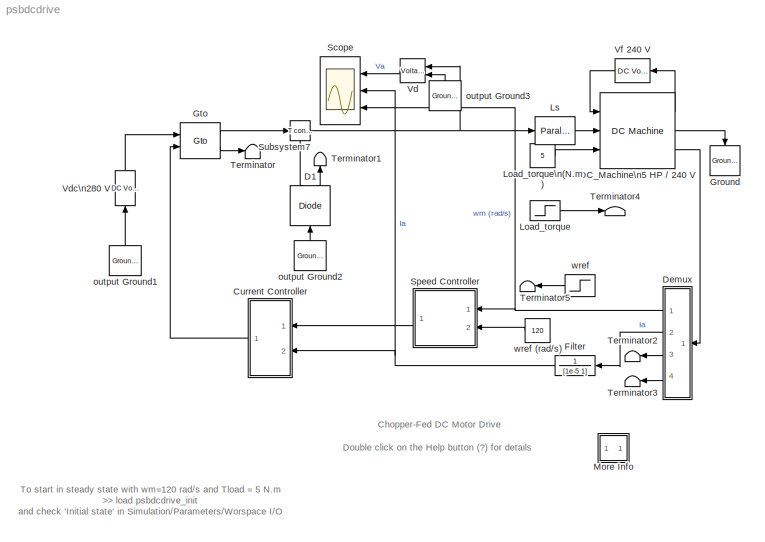
MODEL psbdcdrive
KIND model
CONFIG InitFcn = powericon('psbinitsys',bdroot);
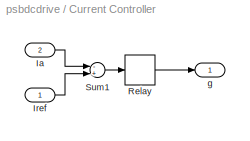
BLOCK [SubSystem] Current Controller
  MaskDescription = Hysteresis Current Controller
  MaskDisplay = plot(0,0,100,100,[45,45],[35,65],[55,55],[35,65],[45,65],[65,65],[35,55],[35,35])
  MaskEnableString = on
  MaskIconFrame = on
  MaskIconOpaque = off
  MaskIconRotate = none
  MaskIconUnits = autoscale
  MaskPromptString = Hysteresis band (A)
  MaskStyleString = edit
  MaskToolTipString = on
  MaskTunableValueString = on
  MaskValueString = 2
  MaskVariables = h=@1;
  MaskVisibilityString = on
  MinAlgLoopOccurrences = off
  Ports = [2, 1]
  RTWSystemCode = Auto
  TreatAsAtomicUnit = off
BLOCK [Inport] Current Controller/Ia
  IconDisplay = Port number
  LatchInput = off
  Port = 2
BLOCK [Inport] Current Controller/Iref
  IconDisplay = Port number
  LatchInput = off
  Port = 1
BLOCK [Relay] Current Controller/Relay
  OffSwitchValue = -h/2
  OnSwitchValue = h/2
BLOCK [Sum] Current Controller/Sum1
  Inputs = -+
  Ports = [2, 1]
BLOCK [Outport] Current Controller/g
  BusOutputAsStruct = off
  IconDisplay = Port number
  InitialOutput = 0
BLOCK [Reference] D1  REF=powerlib2/Power\nElectronics/Diode
  Cs = 0.1e-6
  IC = 0
  Lon = 5e-6
  PSBOutputType = 10
  Ports = [1, 2]
  Ron = 0.05
  Rs = Inf
  SourceBlock = powerlib2/Power\nElectronics/Diode
  SourceType = Diode
  Tag = PoWeRsYsTeMbLoCk
  Vf = 0.7
BLOCK [Reference] DC_Machine\n5 HP // 240 V  REF=powerlib2/Machines/DC Machine
  Bm = 0.02
  J = 0.05
  Laf = 1.23
  PSBOutputType = 110
  Ports = [3, 3]
  RLa = [0.5  0.01]
  RLf = [240  0]
  SourceBlock = powerlib2/Machines/DC Machine
  SourceType = DC machine
  Tf = 0
  w0 = 1e-1
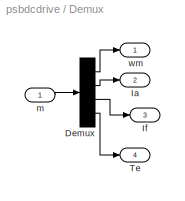
BLOCK [SubSystem] Demux
  MinAlgLoopOccurrences = off
  Ports = [1, 4]
  RTWSystemCode = Auto
  TreatAsAtomicUnit = off
BLOCK [Demux] Demux/Demux
  Ports = [1, 4]
BLOCK [Outport] Demux/Ia
  BusOutputAsStruct = off
  IconDisplay = Port number
  Port = 2
BLOCK [Outport] Demux/If
  BusOutputAsStruct = off
  IconDisplay = Port number
  Port = 3
BLOCK [Outport] Demux/Te
  BusOutputAsStruct = off
  IconDisplay = Port number
  Port = 4
BLOCK [Inport] Demux/m
  IconDisplay = Port number
  LatchInput = off
  Port = 1
BLOCK [Outport] Demux/wm
  BusOutputAsStruct = off
  IconDisplay = Port number
BLOCK [TransferFcn] Filter
  Denominator = [1e-5 1]
  MaskDisplay = disp('Filter')
  MaskIconFrame = on
  MaskIconOpaque = on
  MaskIconRotate = none
  MaskIconUnits = autoscale
  Numerator = 1
BLOCK [Reference] Ground  REF=powerlib2/Connectors/Ground (input)
  Ports = [1]
  SourceBlock = powerlib2/Connectors/Ground (input)
  SourceType = Ground
  Tag = PoWeRsYsTeMbLoCk
BLOCK [Reference] Gto  REF=powerlib2/Power\nElectronics/Gto
  Cs = 0.1e-6
  IC = 0
  Lon = 1e-6
  PSBOutputType = 10
  Ports = [2, 2]
  Ron = 0.05
  Rs = 100
  SourceBlock = powerlib2/Power\nElectronics/Gto
  SourceType = Gto
  Tag = PoWeRsYsTeMbLoCk
  Tf = 1e-6
  Tt = 1e-6
  Vf = 1
BLOCK [Step] Load_torque 
  After = 25
  Before = 5
  SampleTime = 0
  Time = 1.2
BLOCK [Constant] Load_torque\n(N.m)
  Value = 5
BLOCK [Reference] Ls  REF=powerlib2/Elements/Parallel RLC Branch
  PSBOutputType = 1
  Ports = [1, 1]
  SourceBlock = powerlib2/Elements/Parallel RLC Branch
  SourceType = Parallel RLC Branch
  Tag = PoWeRsYsTeMbLoCk
  a = inf
  b = 10e-03
  c = 0
  mesure = None
BLOCK [SubSystem] More Info
  MaskDisplay = disp('?')
  MaskIconFrame = on
  MaskIconOpaque = on
  MaskIconRotate = none
  MaskIconUnits = autoscale
  MinAlgLoopOccurrences = off
  Ports = []
  RTWSystemCode = Auto
  TreatAsAtomicUnit = off
BLOCK [Scope] Scope
  DataFormat = StructureWithTime
  Decimation = 20
  LimitDataPoints = off
  NumInputPorts = 3
  Ports = [3]
  SaveName = var
  SaveToWorkspace = on
  TickLabels = on
  YMax = 300~40~80
  YMin = -300~0~0
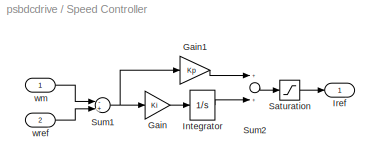
BLOCK [SubSystem] Speed Controller
  MaskCallbackString = ||
  MaskDescription = Proportional-Integral Speed Controller
  MaskDisplay = plot(0,0,100,100,[35,35,65],[70,30,30],[35,65],[45,60])
  MaskEnableString = on,on,on
  MaskIconFrame = on
  MaskIconOpaque = off
  MaskIconRotate = none
  MaskIconUnits = autoscale
  MaskPromptString = Proportional gain (Kp)|Integral gain (Ki)|Current limit (A)
  MaskStyleString = edit,edit,edit
  MaskTabNameString = ,,
  MaskToolTipString = on,on,on
  MaskTunableValueString = on,on,on
  MaskType = PI controller
  MaskValueString = 1.6|16|30
  MaskVarAliasString = ,,
  MaskVariables = Kp=@1;Ki=@2;Ilim=@3;
  MaskVisibilityString = on,on,on
  MinAlgLoopOccurrences = off
  Ports = [2, 1]
  RTWSystemCode = Auto
  TreatAsAtomicUnit = off
BLOCK [Gain] Speed Controller/Gain
  Gain = Ki
BLOCK [Gain] Speed Controller/Gain1
  Gain = Kp
BLOCK [Integrator] Speed Controller/Integrator
  LimitOutput = on
  LowerSaturationLimit = -Ilim
  Ports = [1, 1]
  UpperSaturationLimit = Ilim
BLOCK [Outport] Speed Controller/Iref
  BusOutputAsStruct = off
  IconDisplay = Port number
  InitialOutput = 0
BLOCK [Saturate] Speed Controller/Saturation
  LowerLimit = -Ilim
  UpperLimit = Ilim
BLOCK [Sum] Speed Controller/Sum1
  Inputs = -+
  Ports = [2, 1]
BLOCK [Sum] Speed Controller/Sum2
  Ports = [2, 1]
BLOCK [Inport] Speed Controller/wm
  IconDisplay = Port number
  LatchInput = off
  Port = 1
BLOCK [Inport] Speed Controller/wref
  IconDisplay = Port number
  LatchInput = off
  Port = 2
BLOCK [Reference] Subsystem7  REF=powerlib2/Connectors/T connector
  PSBOutputType = 1
  Ports = [1, 1, 1]
  SourceBlock = powerlib2/Connectors/T connector
  SourceType = Bus Bar
  Tag = PoWeRsYsTeMbLoCk
BLOCK [Terminator] Terminator
BLOCK [Terminator] Terminator1
BLOCK [Terminator] Terminator2
BLOCK [Terminator] Terminator3
BLOCK [Terminator] Terminator4
BLOCK [Terminator] Terminator5
BLOCK [Reference] Vd  REF=powerlib2/Measurements/Voltage Measurement
  OutputType = Magnitude
  PSBOutputType = 0
  PSBequivalent = 0
  PhasorSimulation = off
  Ports = [2, 1]
  SourceBlock = powerlib2/Measurements/Voltage Measurement
  SourceType = Voltage Measurement
  Tag = PoWeRsYsTeMmEaSuReMeNt
BLOCK [Reference] Vdc\n280 V   REF=powerlib2/Electrical\nSources/DC Voltage Source
  PSBOutputType = 1
  Ports = [1, 1]
  SourceBlock = powerlib2/Electrical\nSources/DC Voltage Source
  SourceType = DC Voltage Source
  Tag = PoWeRsYsTeMbLoCk
  V = 280
  mesure = None
BLOCK [Reference] Vf 240 V  REF=powerlib2/Electrical\nSources/DC Voltage Source
  PSBOutputType = 1
  Ports = [1, 1]
  SourceBlock = powerlib2/Electrical\nSources/DC Voltage Source
  SourceType = DC Voltage Source
  Tag = PoWeRsYsTeMbLoCk
  V = 240
  mesure = None
BLOCK [Reference] output Ground1  REF=powerlib2/Connectors/Ground (output)
  PSBOutputType = 1
  Ports = [0, 1]
  SourceBlock = powerlib2/Connectors/Ground (output)
  SourceType = Ground
  Tag = PoWeRsYsTeMbLoCk
BLOCK [Reference] output Ground2  REF=powerlib2/Connectors/Ground (output)
  PSBOutputType = 1
  Ports = [0, 1]
  SourceBlock = powerlib2/Connectors/Ground (output)
  SourceType = Ground
  Tag = PoWeRsYsTeMbLoCk
BLOCK [Reference] output Ground3  REF=powerlib2/Connectors/Ground (output)
  PSBOutputType = 1
  Ports = [0, 1]
  SourceBlock = powerlib2/Connectors/Ground (output)
  SourceType = Ground
  Tag = PoWeRsYsTeMbLoCk
BLOCK [Step] wref 
  After = 160
  Before = 120
  SampleTime = 0
  Time = 0.4
BLOCK [Constant] wref (rad//s)
  Value = 120
ANNOTATION (root): Chopper-Fed DC Motor Drive
ANNOTATION (root): Double click on the Help button (?) for details
ANNOTATION (root): To start in steady state with wm=120 rad/s and Tload = 5 N.m\n>> load psbdcdrive_init\nand check 'Initial state' in Simulation/Parameters/Worspace I/O
ANNOTATION More Info: Case study: Chopper-Fed DC Motor Drive
ANNOTATION More Info: Circuit Description
ANNOTATION More Info: Demonstration
ANNOTATION More Info: H. Le-Huy (Universite Laval, Quebec)
ANNOTATION More Info: Start the simulation. Observe the motor current, voltage, and speed during the starting on the scope.\n\nAt the end of the simulation time (1.5 s), the system has attained its steady-state. The final state vector can\nbe saved by previously selecting 'Workspace I/O/Save to workspace/Final state' in Simulation/Parameters window.\nOnce the simultion is finished save the xFinal variable into xInitial...<+615ch>
ANNOTATION More Info: The DC motor is fed by the DC source through a chopper which consists of GTO thyristor Th1\nand free-wheeling diode D1. The motor drives a mechanical load characterized by inertia J, friction\ncoeficient B, and load torque TL.\n\nThe hysteresis current controller compares the sensed current with the reference and generates \nthe trigger signal for the GTO thyristor to force the motor current to fo...<+218ch>
LINE Current Controller/Ia:1 -> Current Controller/Sum1:1
LINE Current Controller/Iref:1 -> Current Controller/Sum1:2
LINE Current Controller/Relay:1 -> Current Controller/g:1
LINE Current Controller/Sum1:1 -> Current Controller/Relay:1
LINE Current Controller:1 -> Gto:2
LINE D1:1 -> Subsystem7:enable
LINE D1:2 -> Terminator1:1
LINE DC_Machine\n5 HP // 240 V:1 -> Vf 240 V:1
LINE DC_Machine\n5 HP // 240 V:2 -> Ground:1
LINE DC_Machine\n5 HP // 240 V:3 -> Demux:1
LINE Demux/Demux:1 -> Demux/wm:1
LINE Demux/Demux:2 -> Demux/Ia:1
LINE Demux/Demux:3 -> Demux/If:1
LINE Demux/Demux:4 -> Demux/Te:1
LINE Demux/m:1 -> Demux/Demux:1
NET Demux:1 -> Scope:3, Speed Controller:1
LINE Demux:2 -> Filter:1
LINE Demux:3 -> Terminator2:1
LINE Demux:4 -> Terminator3:1
NET Filter:1 -> Current Controller:2, Scope:2
LINE Gto:1 -> Subsystem7:1
LINE Gto:2 -> Terminator:1
LINE Load_torque :1 -> Terminator4:1
LINE Load_torque\n(N.m):1 -> DC_Machine\n5 HP // 240 V:3
LINE Ls:1 -> DC_Machine\n5 HP // 240 V:2
LINE Speed Controller/Gain1:1 -> Speed Controller/Sum2:1
LINE Speed Controller/Gain:1 -> Speed Controller/Integrator:1
LINE Speed Controller/Integrator:1 -> Speed Controller/Sum2:2
LINE Speed Controller/Saturation:1 -> Speed Controller/Iref:1
NET Speed Controller/Sum1:1 -> Speed Controller/Gain1:1, Speed Controller/Gain:1
LINE Speed Controller/Sum2:1 -> Speed Controller/Saturation:1
LINE Speed Controller/wm:1 -> Speed Controller/Sum1:1
LINE Speed Controller/wref:1 -> Speed Controller/Sum1:2
LINE Speed Controller:1 -> Current Controller:1
NET Subsystem7:1 -> Ls:1, Vd:1
LINE Vd:1 -> Scope:1
LINE Vdc\n280 V :1 -> Gto:1
LINE Vf 240 V:1 -> DC_Machine\n5 HP // 240 V:1
LINE output Ground1:1 -> Vdc\n280 V :1
LINE output Ground2:1 -> D1:1
LINE output Ground3:1 -> Vd:2
LINE wref (rad//s):1 -> Speed Controller:2
LINE wref :1 -> Terminator5:1
note: NET lines group one-source signal fan-out (src -> all destinations, sorted); 1:1 wires keep LINE
